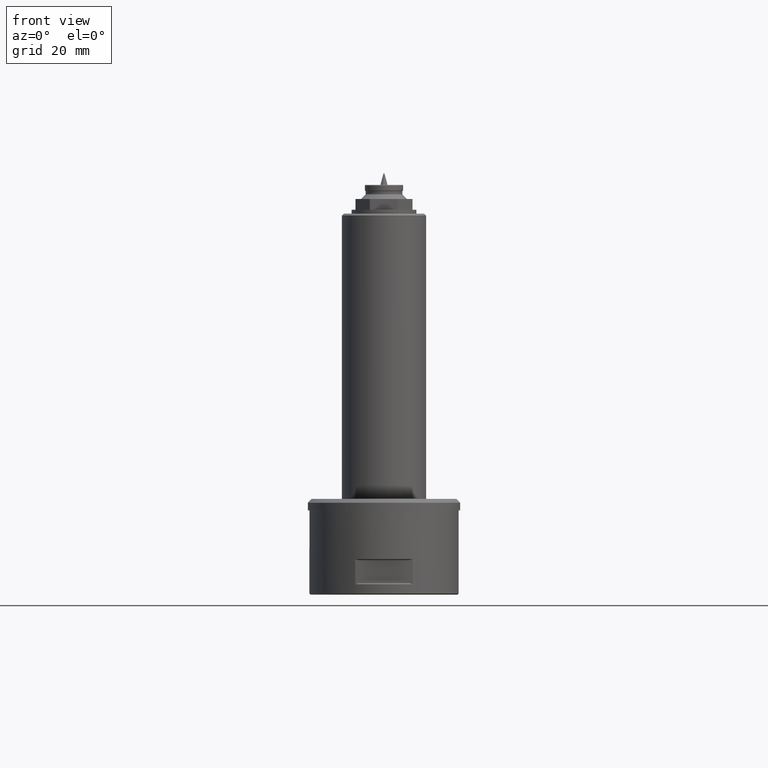
[diagram: clean part render]
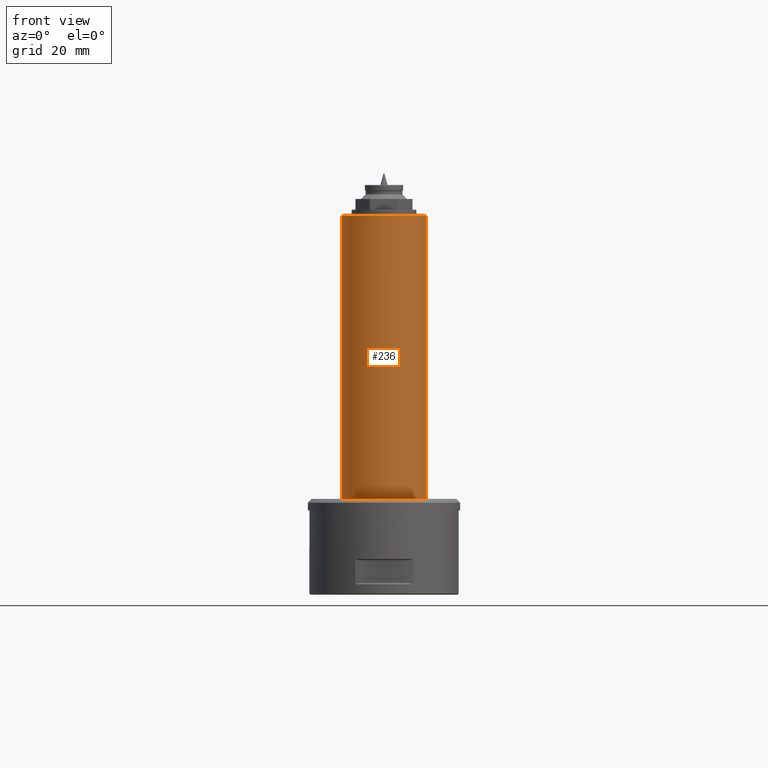
[diagram: same view with one face highlighted and labeled with its STEP entity id]
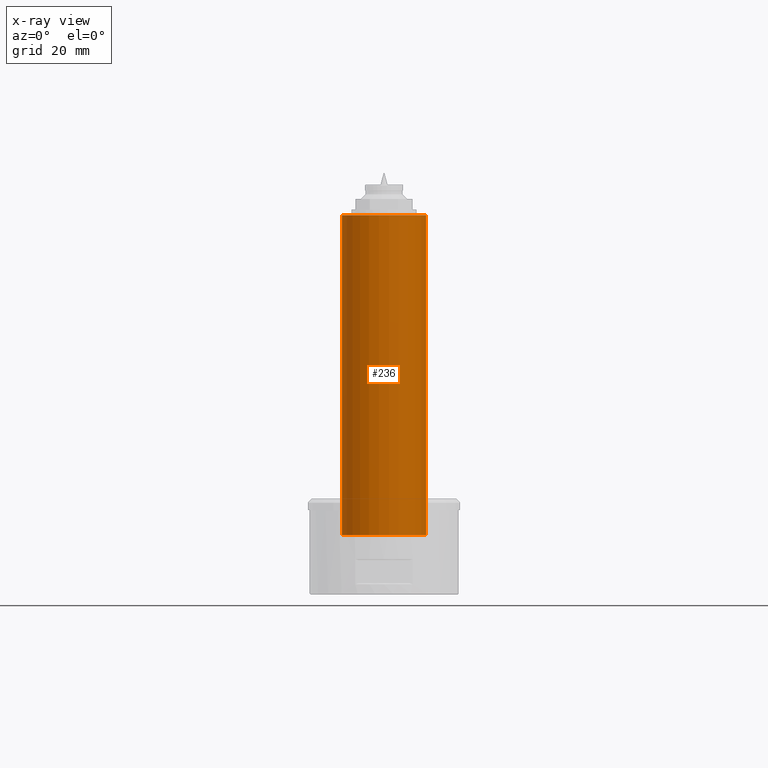
[diagram: x-ray of the same camera — body ghosted, the highlighted face saturated]
A machine part, front view. The second image highlights one B-rep face of the part: STEP entity #236.
The next image is the same camera in x-ray: the body ghosted, the highlighted face saturated — about 0% of this face is hidden behind the body in this view.
In plain terms, the highlighted cylindrical surface (bore or boss wall) has radius 11 mm, axis along (0, 0, 1).
Its self-contained STEP definition (entity closure, byte-faithful):
#40=CYLINDRICAL_SURFACE('',#1153,11.);
#236=ADVANCED_FACE('',(#347,#348,#349,#350),#40,.T.);
#323=B_SPLINE_CURVE_WITH_KNOTS('',3,(#1821,#1822,#1823,#1824,#1825,#1826,
#1827,#1828,#1829,#1830,#1831,#1832,#1833,#1834,#1835,#1836,#1837,#1838,
#1839,#1840,#1841,#1842,#1843,#1844,#1845,#1846,#1847,#1848,#1849,#1850,
#1851,#1852,#1853,#1854,#1855,#1856,#1857,#1858,#1859,#1860,#1861,#1862,
#1863,#1864,#1865,#1866,#1867,#1868,#1869,#1870,#1871,#1872,#1873,#1874,
#1875,#1876,#1877,#1878),.UNSPECIFIED.,.T.,.F.,(1,3,3,3,3,3,3,3,3,3,3,3,
3,3,3,3,3,3,3,3,3,1),(-0.0334760659607021,0.,0.0569276184208162,0.11388798171723,
0.170189178404946,0.223994773815214,0.275023318518955,0.32479447673683,
0.375435942673917,0.428444094596675,0.484019015101014,0.541000746772207,
0.597629402742916,0.652691800182207,0.705997861087889,0.758026453272304,
0.809447894307852,0.860920961920237,0.913080990616137,0.966523934039298,
1.,1.05692761842082),.UNSPECIFIED.);
#324=B_SPLINE_CURVE_WITH_KNOTS('',3,(#1880,#1881,#1882,#1883,#1884,#1885,
#1886,#1887,#1888,#1889,#1890,#1891,#1892,#1893,#1894,#1895,#1896,#1897,
#1898,#1899,#1900,#1901,#1902,#1903,#1904,#1905,#1906,#1907,#1908,#1909,
#1910,#1911,#1912,#1913,#1914,#1915,#1916,#1917,#1918,#1919,#1920,#1921,
#1922,#1923,#1924,#1925,#1926,#1927,#1928,#1929,#1930,#1931,#1932,#1933,
#1934,#1935,#1936,#1937),.UNSPECIFIED.,.T.,.F.,(1,3,3,3,3,3,3,3,3,3,3,3,
3,3,3,3,3,3,3,3,3,1),(-0.0368720802815016,0.,0.0557742989657597,0.11163351685579,
0.166177446941804,0.219065034009752,0.270861475775484,0.322242468032284,
0.37385818799038,0.426338903139108,0.480247896041717,0.535857703218907,
0.592750324818179,0.649530104049342,0.704312651862768,0.756186565040042,
0.806141649324129,0.856262775636491,0.908363747585336,0.963127919718498,
1.,1.05577429896576),.UNSPECIFIED.);
#347=FACE_BOUND('',#425,.T.);
#348=FACE_BOUND('',#426,.T.);
#349=FACE_BOUND('',#427,.T.);
#350=FACE_BOUND('',#428,.T.);
#425=EDGE_LOOP('',(#577));
#426=EDGE_LOOP('',(#578));
#427=EDGE_LOOP('',(#579));
#428=EDGE_LOOP('',(#580));
#577=ORIENTED_EDGE('',*,*,#956,.T.);
#578=ORIENTED_EDGE('',*,*,#957,.T.);
#579=ORIENTED_EDGE('',*,*,#958,.F.);
#580=ORIENTED_EDGE('',*,*,#959,.F.);
#843=VERTEX_POINT('',#1818);
#844=VERTEX_POINT('',#1820);
#845=VERTEX_POINT('',#1879);
#846=VERTEX_POINT('',#1938);
#956=EDGE_CURVE('',#843,#843,#1072,.T.);
#957=EDGE_CURVE('',#844,#844,#1073,.T.);
#958=EDGE_CURVE('',#845,#845,#323,.T.);
#959=EDGE_CURVE('',#846,#846,#324,.T.);
#1072=CIRCLE('',#1151,11.);
#1073=CIRCLE('',#1152,11.0000000000001);
#1151=AXIS2_PLACEMENT_3D('',#1817,#1341,#1342);
#1152=AXIS2_PLACEMENT_3D('',#1819,#1343,#1344);
#1153=AXIS2_PLACEMENT_3D('',#1939,#1345,#1346);
#1341=DIRECTION('',(0.,0.,-1.));
#1342=DIRECTION('',(-1.,0.,0.));
#1343=DIRECTION('',(0.,0.,1.));
#1344=DIRECTION('',(1.,0.,0.));
#1345=DIRECTION('',(0.,0.,1.));
#1346=DIRECTION('',(1.,0.,0.));
#1817=CARTESIAN_POINT('',(0.,0.,99.));
#1818=CARTESIAN_POINT('',(-11.,0.,99.));
#1819=CARTESIAN_POINT('',(0.,0.,15.5));
#1820=CARTESIAN_POINT('',(11.0000000000001,0.,15.5));
#1821=CARTESIAN_POINT('',(-2.99999999999991,10.5830052442584,17.8999999999996));
#1822=CARTESIAN_POINT('',(-3.06981681712979,10.5632140368882,17.8999999999996));
#1823=CARTESIAN_POINT('',(-3.14038450659972,10.5424227737473,17.9124970988472));
#1824=CARTESIAN_POINT('',(-3.20591448775793,10.5224575217572,17.9364405765748));
#1825=CARTESIAN_POINT('',(-3.27146261720385,10.5024867404638,17.9603906853607));
#1826=CARTESIAN_POINT('',(-3.33382981085157,10.4827847092571,17.9964888354275));
#1827=CARTESIAN_POINT('',(-3.3876192775582,10.4653731720525,18.0420138695711));
#1828=CARTESIAN_POINT('',(-3.44075567997196,10.4481730303855,18.0869861788774));
#1829=CARTESIAN_POINT('',(-3.48705359081985,10.43272799059,18.1425344552966));
#1830=CARTESIAN_POINT('',(-3.5219399223933,10.4209375385832,18.2040629840455));
#1831=CARTESIAN_POINT('',(-3.55529059017035,10.4096660912832,18.262883084313));
#1832=CARTESIAN_POINT('',(-3.57915482046362,10.4014329403698,18.3289382027011));
#1833=CARTESIAN_POINT('',(-3.59097724228668,10.39734977989,18.3963375714194));
#1834=CARTESIAN_POINT('',(-3.60220237963041,10.3934729061101,18.4603318343604));
#1835=CARTESIAN_POINT('',(-3.60289005001189,10.3932330618097,18.5273519849324));
#1836=CARTESIAN_POINT('',(-3.59296868398482,10.396661773661,18.5915867884212));
#1837=CARTESIAN_POINT('',(-3.58328137018419,10.4000095997109,18.6543062462681));
#1838=CARTESIAN_POINT('',(-3.56326033680526,10.4069246310301,18.716062895263));
#1839=CARTESIAN_POINT('',(-3.53478046430455,10.4165890323642,18.7720475234187));
#1840=CARTESIAN_POINT('',(-3.5057920601981,10.4264259995527,18.8290318032705));
#1841=CARTESIAN_POINT('',(-3.46732907570817,10.4393411650476,18.8815408372879));
#1842=CARTESIAN_POINT('',(-3.42260264746866,10.453984461321,18.9259190091467));
#1843=CARTESIAN_POINT('',(-3.37580324197967,10.4693064440271,18.9723540172935));
#1844=CARTESIAN_POINT('',(-3.32095149567916,10.4868989700489,19.0111162295878));
#1845=CARTESIAN_POINT('',(-3.26232257871943,10.5051059676891,19.0396173317213));
#1846=CARTESIAN_POINT('',(-3.20090536269367,10.5241788614971,19.0694739014394));
#1847=CARTESIAN_POINT('',(-3.1336983167243,10.5444253513799,19.088868258931));
#1848=CARTESIAN_POINT('',(-3.06598618430007,10.564077277154,19.0963604811534));
#1849=CARTESIAN_POINT('',(-2.99661772046592,10.5842099159223,19.1040359733831));
#1850=CARTESIAN_POINT('',(-2.92478068762943,10.6042751642352,19.0994009585023));
#1851=CARTESIAN_POINT('',(-2.85653800704422,10.622626352005,19.0825964783426));
#1852=CARTESIAN_POINT('',(-2.78874380432905,10.6408569392719,19.0659024340187));
#1853=CARTESIAN_POINT('',(-2.72256330115455,10.6579214838166,19.0366771898524));
#1854=CARTESIAN_POINT('',(-2.66401663073763,10.6725355652325,18.9971068050018));
#1855=CARTESIAN_POINT('',(-2.60707805025483,10.6867482445354,18.9586232921649));
#1856=CARTESIAN_POINT('',(-2.55573615457012,10.6990643438209,18.9092216508164));
#1857=CARTESIAN_POINT('',(-2.51483547133773,10.7086695042896,18.8530090368927));
#1858=CARTESIAN_POINT('',(-2.47521965706406,10.7179729247492,18.798562306495));
#1859=CARTESIAN_POINT('',(-2.44427888225215,10.725012553923,18.7361680065076));
#1860=CARTESIAN_POINT('',(-2.42492917387903,10.7293857467085,18.6711535712293));
#1861=CARTESIAN_POINT('',(-2.40603383409633,10.7336562484661,18.6076658006813));
#1862=CARTESIAN_POINT('',(-2.39766002012662,10.7355128144675,18.5399010011442));
#1863=CARTESIAN_POINT('',(-2.40058147454186,10.7348595046273,18.4735910746605));
#1864=CARTESIAN_POINT('',(-2.40346989220308,10.7342135826266,18.4080310023314));
#1865=CARTESIAN_POINT('',(-2.41746976120564,10.7310967887803,18.3420888473413));
#1866=CARTESIAN_POINT('',(-2.44132064172829,10.7256679756681,18.2811910087746));
#1867=CARTESIAN_POINT('',(-2.46520089217958,10.7202324775258,18.2202181807259));
#1868=CARTESIAN_POINT('',(-2.49958709380877,10.712325527574,18.162649352121));
#1869=CARTESIAN_POINT('',(-2.5414784747202,10.7023776406243,18.1130141981221));
#1870=CARTESIAN_POINT('',(-2.58393260100764,10.6922961193263,18.0627122732317));
#1871=CARTESIAN_POINT('',(-2.63520668837192,10.6798406558194,18.0192069291159));
#1872=CARTESIAN_POINT('',(-2.69099725920307,10.6657645647634,17.9856875403221));
#1873=CARTESIAN_POINT('',(-2.74815439445356,10.6513436863192,17.9513471094883));
#1874=CARTESIAN_POINT('',(-2.81154660528336,10.63483306504,17.9265595067595));
#1875=CARTESIAN_POINT('',(-2.87606909114748,10.6173549711285,17.912938563836));
#1876=CARTESIAN_POINT('',(-2.9168172067377,10.6063169681522,17.9043364811781));
#1877=CARTESIAN_POINT('',(-2.95854912963758,10.5947554615376,17.9));
#1878=CARTESIAN_POINT('',(-2.99999999999991,10.5830052442584,17.8999999999996));
#1879=CARTESIAN_POINT('',(-2.99999999999991,10.5830052442584,17.8999999999996));
#1880=CARTESIAN_POINT('',(3.,10.5830052442584,17.9));
#1881=CARTESIAN_POINT('',(2.93157776268094,10.6024011254112,17.9));
#1882=CARTESIAN_POINT('',(2.86200103123959,10.6213682036753,17.9120184260052));
#1883=CARTESIAN_POINT('',(2.79703438724802,10.6384490710137,17.9353718391364));
#1884=CARTESIAN_POINT('',(2.7320103370553,10.6555450314468,17.9587458879455));
#1885=CARTESIAN_POINT('',(2.66978703597954,10.6712370364004,17.9941809411905));
#1886=CARTESIAN_POINT('',(2.61603314063602,10.6843984672556,18.0389474532007));
#1887=CARTESIAN_POINT('',(2.56353945073258,10.697251341742,18.0826644598382));
#1888=CARTESIAN_POINT('',(2.51763653283456,10.7080714805244,18.1365556317496));
#1889=CARTESIAN_POINT('',(2.48266645677231,10.7161731632341,18.1960822396577));
#1890=CARTESIAN_POINT('',(2.44874076668953,10.7240328881105,18.253831077492));
#1891=CARTESIAN_POINT('',(2.42414752977925,10.7295705886034,18.3185251548311));
#1892=CARTESIAN_POINT('',(2.41119404172678,10.7324807613683,18.3846416734607));
#1893=CARTESIAN_POINT('',(2.39850192828665,10.7353322128626,18.4494240974158));
#1894=CARTESIAN_POINT('',(2.39662628451943,10.7357472804405,18.5173773051816));
#1895=CARTESIAN_POINT('',(2.40573921106561,10.7337048053476,18.5827895810781));
#1896=CARTESIAN_POINT('',(2.41478198245278,10.7316780540909,18.6476982856363));
#1897=CARTESIAN_POINT('',(2.43488137661748,10.7271739203114,18.7118830111512));
#1898=CARTESIAN_POINT('',(2.46424264963384,10.7204248126521,18.7701186064096));
#1899=CARTESIAN_POINT('',(2.49374362150502,10.7136435932171,18.8286312825003));
#1900=CARTESIAN_POINT('',(2.53337223225895,10.7044054890209,18.8827187066261));
#1901=CARTESIAN_POINT('',(2.57970577353719,10.6932276755888,18.9281971078861));
#1902=CARTESIAN_POINT('',(2.62681766353679,10.6818620881047,18.9744394925261));
#1903=CARTESIAN_POINT('',(2.68209331660847,10.6681802021503,19.0130234750021));
#1904=CARTESIAN_POINT('',(2.74094962383965,10.6530368984423,19.0411958080133));
#1905=CARTESIAN_POINT('',(2.80139777059471,10.6374840258962,19.0701300956099));
#1906=CARTESIAN_POINT('',(2.86720740483468,10.619971756203,19.0888688729684));
#1907=CARTESIAN_POINT('',(2.9331298174092,10.6017333240478,19.0962620050618));
#1908=CARTESIAN_POINT('',(3.00110249062967,10.5829276562859,19.1038850718191));
#1909=CARTESIAN_POINT('',(3.07101520825842,10.5628431015272,19.0996660215352));
#1910=CARTESIAN_POINT('',(3.13734201604683,10.5431060449161,19.0840694912664));
#1911=CARTESIAN_POINT('',(3.20515211535748,10.5229276010332,19.0681241698844));
#1912=CARTESIAN_POINT('',(3.27110094765836,10.5025556331558,19.0398313705543));
#1913=CARTESIAN_POINT('',(3.32966917555234,10.4839545583418,19.0013165015144));
#1914=CARTESIAN_POINT('',(3.38808231784845,10.4654027381992,18.9629036178292));
#1915=CARTESIAN_POINT('',(3.44083466313042,10.4480920325361,18.9131574544189));
#1916=CARTESIAN_POINT('',(3.48293890100079,10.4340374070585,18.856047774744));
#1917=CARTESIAN_POINT('',(3.52356128335022,10.4204774330794,18.8009480659986));
#1918=CARTESIAN_POINT('',(3.5554329947202,10.4095789033144,18.7373143127868));
#1919=CARTESIAN_POINT('',(3.57519634981803,10.4027866968543,18.6707312483291));
#1920=CARTESIAN_POINT('',(3.59392805482079,10.3963490445883,18.607623829805));
#1921=CARTESIAN_POINT('',(3.60230450416012,10.3934311697856,18.5400395213616));
#1922=CARTESIAN_POINT('',(3.59943494783162,10.3944248545231,18.4739664962385));
#1923=CARTESIAN_POINT('',(3.59666819628346,10.3953829394921,18.4102606045871));
#1924=CARTESIAN_POINT('',(3.58340256704312,10.3999899088048,18.3462165570747));
#1925=CARTESIAN_POINT('',(3.56093147871386,10.4076782715409,18.2870308092989));
#1926=CARTESIAN_POINT('',(3.53837143034079,10.4153970714804,18.2276107530358));
#1927=CARTESIAN_POINT('',(3.50598754922911,10.4263979969206,18.1715115377314));
#1928=CARTESIAN_POINT('',(3.46658353146951,10.4394826796803,18.1227735319978));
#1929=CARTESIAN_POINT('',(3.42562877353259,10.4530823084891,18.0721174481607));
#1930=CARTESIAN_POINT('',(3.37605989462457,10.4692625828208,18.028076465855));
#1931=CARTESIAN_POINT('',(3.32180101851201,10.4864502093613,17.9935968952656));
#1932=CARTESIAN_POINT('',(3.26480921141747,10.5045035485822,17.9573806450128));
#1933=CARTESIAN_POINT('',(3.20114202724131,10.5241315372946,17.9307467899791));
#1934=CARTESIAN_POINT('',(3.1357461621129,10.5435807962378,17.9155575481952));
#1935=CARTESIAN_POINT('',(3.091395887525,10.5567709264237,17.905256483402));
#1936=CARTESIAN_POINT('',(3.04560595623492,10.5700771708476,17.9));
#1937=CARTESIAN_POINT('',(3.,10.5830052442584,17.9));
#1938=CARTESIAN_POINT('',(3.,10.5830052442584,17.9));
#1939=CARTESIAN_POINT('',(0.,0.,0.));